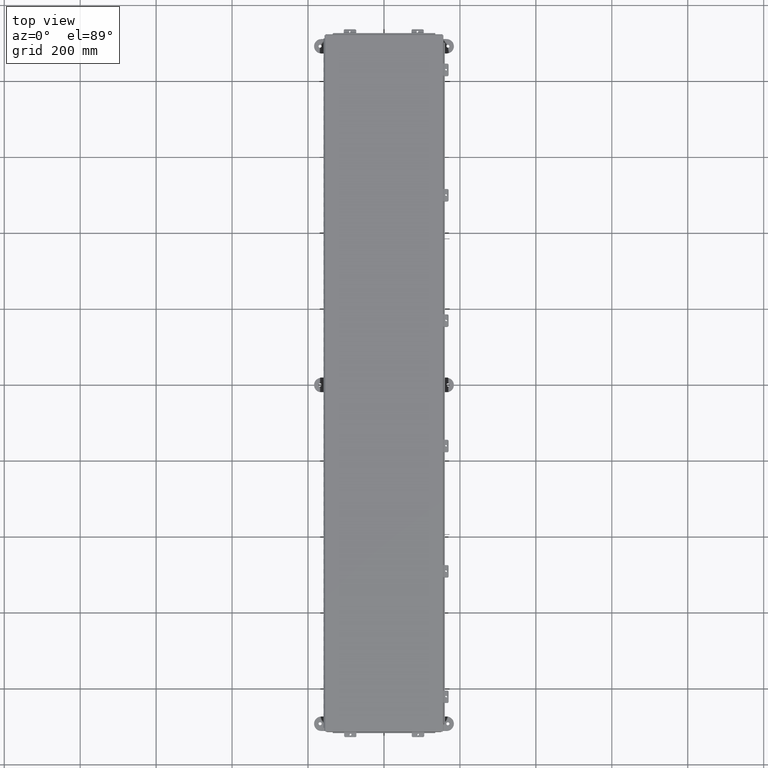
[diagram: clean part render]
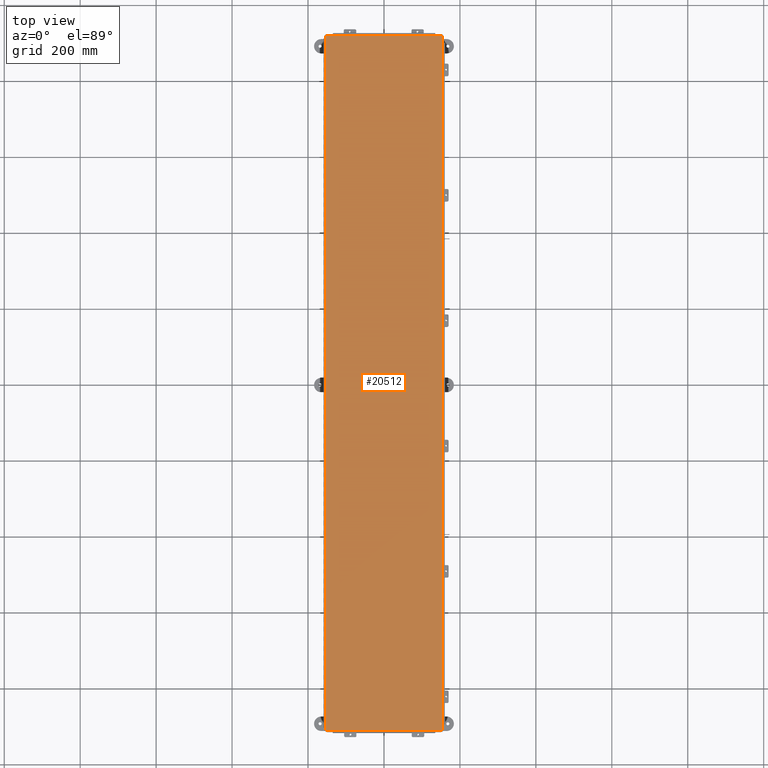
[diagram: same view with one face highlighted and labeled with its STEP entity id]
A machine part, top view. The second image highlights one B-rep face of the part: STEP entity #20512.
In plain terms, the highlighted planar face has unit normal (0, -0, 1).
Its self-contained STEP definition (entity closure, byte-faithful):
#841 = LINE ( 'NONE', #9574, #10018 ) ;
#1735 = ORIENTED_EDGE ( 'NONE', *, *, #16807, .T. ) ;
#1948 = CARTESIAN_POINT ( 'NONE',  ( 6.068550000000020500, 36.07447893218815000, -0.07470000000000015500 ) ) ;
#3904 = LINE ( 'NONE', #45353, #33821 ) ;
#4043 = CARTESIAN_POINT ( 'NONE',  ( 0.0000000000000000000, 0.0000000000000000000, -0.07470000000000015500 ) ) ;
#5023 = EDGE_LOOP ( 'NONE', ( #25485, #12345, #8881, #1735 ) ) ;
#6170 = EDGE_CURVE ( 'NONE', #34402, #46764, #841, .T. ) ;
#8838 = VERTEX_POINT ( 'NONE', #35382 ) ;
#8881 = ORIENTED_EDGE ( 'NONE', *, *, #6170, .T. ) ;
#9574 = CARTESIAN_POINT ( 'NONE',  ( 6.074478932188155200, -36.06854999999998800, -0.07470000000000015500 ) ) ;
#10018 = VECTOR ( 'NONE', #36858, 39.37007874015748100 ) ;
#11888 = DIRECTION ( 'NONE',  ( -1.000000000000000000, -1.597416264078256300E-028, -7.888609052210086500E-031 ) ) ;
#12345 = ORIENTED_EDGE ( 'NONE', *, *, #27996, .T. ) ;
#14295 = CARTESIAN_POINT ( 'NONE',  ( -6.068550000000018800, -36.06854999999998100, -0.07470000000000015500 ) ) ;
#16807 = EDGE_CURVE ( 'NONE', #46764, #8838, #44935, .T. ) ;
#18096 = DIRECTION ( 'NONE',  ( 1.000000000000000000, 1.597416264078256300E-028, 7.888609052210086500E-031 ) ) ;
#19411 = LINE ( 'NONE', #1948, #49340 ) ;
#20512 = ADVANCED_FACE ( 'NONE', ( #28682 ), #23500, .T. ) ;
#20975 = DIRECTION ( 'NONE',  ( 1.597416264078259200E-028, 1.000000000000000000, -1.286829351641775500E-028 ) ) ;
#21343 = VERTEX_POINT ( 'NONE', #32811 ) ;
#23500 = PLANE ( 'NONE',  #24426 ) ;
#23734 = EDGE_CURVE ( 'NONE', #8838, #21343, #3904, .T. ) ;
#24426 = AXIS2_PLACEMENT_3D ( 'NONE', #4043, #35266, #11888 ) ;
#25318 = DIRECTION ( 'NONE',  ( -1.597416264078259200E-028, -1.000000000000000000, 1.286829351641775500E-028 ) ) ;
#25485 = ORIENTED_EDGE ( 'NONE', *, *, #23734, .T. ) ;
#27996 = EDGE_CURVE ( 'NONE', #21343, #34402, #19411, .T. ) ;
#28682 = FACE_OUTER_BOUND ( 'NONE', #5023, .T. ) ;
#32811 = CARTESIAN_POINT ( 'NONE',  ( 6.068550000000020500, 36.06855000000001600, -0.07470000000000015500 ) ) ;
#33821 = VECTOR ( 'NONE', #18096, 39.37007874015748100 ) ;
#34402 = VERTEX_POINT ( 'NONE', #44678 ) ;
#34545 = VECTOR ( 'NONE', #20975, 39.37007874015748100 ) ;
#35266 = DIRECTION ( 'NONE',  ( 7.888609052210086500E-031, 1.287568908740415000E-028, -1.000000000000000000 ) ) ;
#35382 = CARTESIAN_POINT ( 'NONE',  ( -6.068550000000018800, 36.06855000000002300, -0.07470000000000015500 ) ) ;
#36858 = DIRECTION ( 'NONE',  ( -1.000000000000000000, -1.597416264078256300E-028, -7.888609052210086500E-031 ) ) ;
#40414 = CARTESIAN_POINT ( 'NONE',  ( -6.068550000000018800, -36.07447893218811400, -0.07470000000000015500 ) ) ;
#44678 = CARTESIAN_POINT ( 'NONE',  ( 6.068550000000020500, -36.06854999999998800, -0.07470000000000015500 ) ) ;
#44935 = LINE ( 'NONE', #40414, #34545 ) ;
#45353 = CARTESIAN_POINT ( 'NONE',  ( -6.074478932188153400, 36.06855000000002300, -0.07470000000000015500 ) ) ;
#46764 = VERTEX_POINT ( 'NONE', #14295 ) ;
#49340 = VECTOR ( 'NONE', #25318, 39.37007874015748100 ) ;